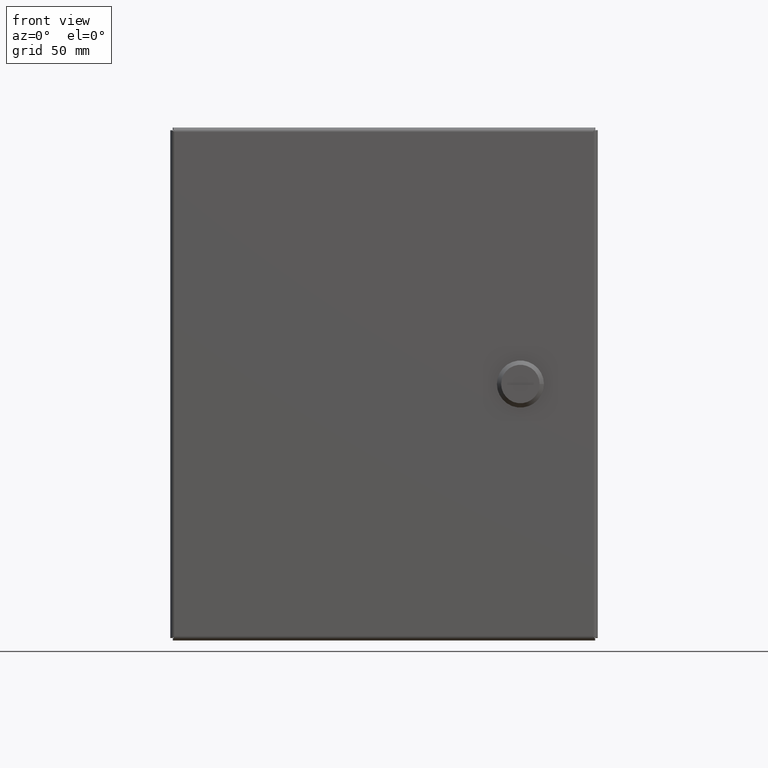
[diagram: clean part render]
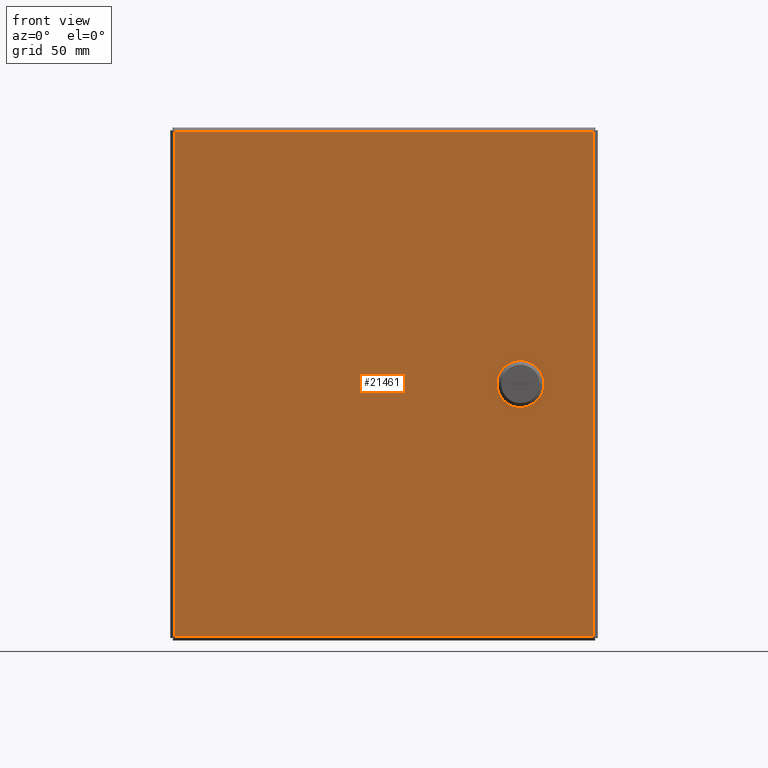
[diagram: same view with one face highlighted and labeled with its STEP entity id]
A machine part, front view. The second image highlights one B-rep face of the part: STEP entity #21461.
In plain terms, the highlighted planar face has unit normal (0, -1, 0).
Its self-contained STEP definition (entity closure, byte-faithful):
#275 = DIRECTION ( 'NONE',  ( 0.0000000000000000000, -0.0000000000000000000, -1.000000000000000000 ) ) ;
#700 = VECTOR ( 'NONE', #1208, 39.37007874015748143 ) ;
#775 = EDGE_CURVE ( 'NONE', #26971, #25436, #2151, .T. ) ;
#856 = EDGE_CURVE ( 'NONE', #25266, #16350, #24189, .T. ) ;
#1159 = ORIENTED_EDGE ( 'NONE', *, *, #7197, .T. ) ;
#1169 = VECTOR ( 'NONE', #20569, 39.37007874015748143 ) ;
#1208 = DIRECTION ( 'NONE',  ( -0.0000000000000000000, 0.0000000000000000000, 1.000000000000000000 ) ) ;
#1214 = ORIENTED_EDGE ( 'NONE', *, *, #9180, .T. ) ;
#1715 = LINE ( 'NONE', #19290, #17512 ) ;
#1928 = CARTESIAN_POINT ( 'NONE',  ( -4.896000000000005237, -6.821999999999999176, -5.899000000000003574 ) ) ;
#1990 = VECTOR ( 'NONE', #4721, 39.37007874015748143 ) ;
#2151 = LINE ( 'NONE', #9357, #1990 ) ;
#2502 = ORIENTED_EDGE ( 'NONE', *, *, #25469, .T. ) ;
#2756 = ORIENTED_EDGE ( 'NONE', *, *, #20912, .T. ) ;
#2850 = CARTESIAN_POINT ( 'NONE',  ( 2.795499999999944141, -6.821999999999999176, -0.2314966081312852808 ) ) ;
#2858 = ORIENTED_EDGE ( 'NONE', *, *, #23919, .T. ) ;
#3510 = CARTESIAN_POINT ( 'NONE',  ( 3.421996608131274265, -6.821999999999999176, 0.3950000000000398193 ) ) ;
#3790 = LINE ( 'NONE', #8404, #1169 ) ;
#4303 = VERTEX_POINT ( 'NONE', #7478 ) ;
#4503 = ORIENTED_EDGE ( 'NONE', *, *, #12072, .T. ) ;
#4648 = CARTESIAN_POINT ( 'NONE',  ( -4.896000000000005237, -6.821999999999999176, 5.897999999999997023 ) ) ;
#4721 = DIRECTION ( 'NONE',  ( -0.7071067811865520136, 0.0000000000000000000, 0.7071067811865430208 ) ) ;
#5160 = ORIENTED_EDGE ( 'NONE', *, *, #856, .T. ) ;
#5730 = VECTOR ( 'NONE', #20011, 39.37007874015748143 ) ;
#6004 = DIRECTION ( 'NONE',  ( -0.7071067811865510144, 0.0000000000000000000, -0.7071067811865440200 ) ) ;
#6099 = FACE_BOUND ( 'NONE', #8495, .T. ) ;
#6273 = CARTESIAN_POINT ( 'NONE',  ( 3.421996608131274265, -6.821999999999999176, -0.3960000000000510334 ) ) ;
#6490 = CARTESIAN_POINT ( 'NONE',  ( 2.795499999999944141, -6.821999999999999176, 0.2304966081312764814 ) ) ;
#7197 = EDGE_CURVE ( 'NONE', #12259, #16195, #10181, .T. ) ;
#7352 = ORIENTED_EDGE ( 'NONE', *, *, #27777, .T. ) ;
#7478 = CARTESIAN_POINT ( 'NONE',  ( 4.900999999999995360, -6.821999999999999176, 5.897999999999997023 ) ) ;
#8404 = CARTESIAN_POINT ( 'NONE',  ( -4.896000000000005237, -6.821999999999999176, -5.899000000000003574 ) ) ;
#8495 = EDGE_LOOP ( 'NONE', ( #7352, #2502, #2858, #1159, #4503, #13724, #18428, #9294 ) ) ;
#8753 = CARTESIAN_POINT ( 'NONE',  ( 3.586500000000042210, -6.821999999999999176, -0.2314966081312853641 ) ) ;
#8992 = CARTESIAN_POINT ( 'NONE',  ( 3.586500000000041766, -6.821999999999999176, -0.2314966081312854473 ) ) ;
#9096 = LINE ( 'NONE', #20034, #22745 ) ;
#9180 = EDGE_CURVE ( 'NONE', #16350, #21735, #3790, .T. ) ;
#9294 = ORIENTED_EDGE ( 'NONE', *, *, #775, .T. ) ;
#9357 = CARTESIAN_POINT ( 'NONE',  ( 2.795499999999944141, -6.821999999999999176, -0.2314966081312853641 ) ) ;
#9489 = DIRECTION ( 'NONE',  ( -1.182635544203179920E-15, 0.0000000000000000000, -1.000000000000000000 ) ) ;
#9894 = CARTESIAN_POINT ( 'NONE',  ( 2.960003391868710754, -6.821999999999999176, -0.3960000000000506448 ) ) ;
#9926 = VECTOR ( 'NONE', #28304, 39.37007874015748143 ) ;
#10181 = LINE ( 'NONE', #3510, #27763 ) ;
#10461 = DIRECTION ( 'NONE',  ( 0.0000000000000000000, -0.0000000000000000000, -1.000000000000000000 ) ) ;
#10816 = LINE ( 'NONE', #23469, #9926 ) ;
#11105 = CARTESIAN_POINT ( 'NONE',  ( -4.896000000000005237, -6.821999999999999176, -5.899000000000003574 ) ) ;
#11234 = CARTESIAN_POINT ( 'NONE',  ( 2.960003391868711198, -6.821999999999999176, 0.3950000000000438161 ) ) ;
#11369 = LINE ( 'NONE', #11234, #5730 ) ;
#11777 = LINE ( 'NONE', #26816, #25775 ) ;
#11997 = EDGE_CURVE ( 'NONE', #12854, #26971, #1715, .T. ) ;
#12072 = EDGE_CURVE ( 'NONE', #16195, #19596, #11777, .T. ) ;
#12259 = VERTEX_POINT ( 'NONE', #18228 ) ;
#12319 = PLANE ( 'NONE',  #17620 ) ;
#12603 = FACE_OUTER_BOUND ( 'NONE', #25650, .T. ) ;
#12854 = VERTEX_POINT ( 'NONE', #6273 ) ;
#13274 = VECTOR ( 'NONE', #17540, 39.37007874015748143 ) ;
#13710 = DIRECTION ( 'NONE',  ( 1.000000000000000000, 0.0000000000000000000, -2.660929974457159997E-15 ) ) ;
#13724 = ORIENTED_EDGE ( 'NONE', *, *, #27705, .T. ) ;
#16195 = VERTEX_POINT ( 'NONE', #18732 ) ;
#16350 = VERTEX_POINT ( 'NONE', #24175 ) ;
#17512 = VECTOR ( 'NONE', #20885, 39.37007874015748143 ) ;
#17540 = DIRECTION ( 'NONE',  ( 0.0000000000000000000, 0.0000000000000000000, 1.000000000000000000 ) ) ;
#17620 = AXIS2_PLACEMENT_3D ( 'NONE', #1928, #27643, #10461 ) ;
#17787 = ORIENTED_EDGE ( 'NONE', *, *, #24118, .T. ) ;
#18228 = CARTESIAN_POINT ( 'NONE',  ( 3.421996608131273376, -6.821999999999999176, 0.3950000000000429279 ) ) ;
#18300 = VECTOR ( 'NONE', #6004, 39.37007874015748143 ) ;
#18428 = ORIENTED_EDGE ( 'NONE', *, *, #11997, .T. ) ;
#18732 = CARTESIAN_POINT ( 'NONE',  ( 3.586500000000041766, -6.821999999999999176, 0.2304966081312765369 ) ) ;
#19290 = CARTESIAN_POINT ( 'NONE',  ( 2.960003391868711198, -6.821999999999999176, -0.3960000000000507003 ) ) ;
#19416 = LINE ( 'NONE', #19690, #13274 ) ;
#19596 = VERTEX_POINT ( 'NONE', #8992 ) ;
#19690 = CARTESIAN_POINT ( 'NONE',  ( 2.795499999999944141, -6.821999999999999176, 0.2304966081312765092 ) ) ;
#19780 = VERTEX_POINT ( 'NONE', #6490 ) ;
#20011 = DIRECTION ( 'NONE',  ( 0.7071067811865510144, 0.0000000000000000000, 0.7071067811865440200 ) ) ;
#20034 = CARTESIAN_POINT ( 'NONE',  ( 3.421996608131274265, -6.821999999999999176, 0.3950000000000438161 ) ) ;
#20569 = DIRECTION ( 'NONE',  ( 1.000000000000000000, 0.0000000000000000000, 0.0000000000000000000 ) ) ;
#20885 = DIRECTION ( 'NONE',  ( -1.000000000000000000, 0.0000000000000000000, 5.913177721015899600E-16 ) ) ;
#20912 = EDGE_CURVE ( 'NONE', #21735, #4303, #21083, .T. ) ;
#21083 = LINE ( 'NONE', #25114, #700 ) ;
#21461 = ADVANCED_FACE ( 'NONE', ( #12603, #6099 ), #12319, .T. ) ;
#21735 = VERTEX_POINT ( 'NONE', #27608 ) ;
#22224 = VECTOR ( 'NONE', #275, 39.37007874015748143 ) ;
#22745 = VECTOR ( 'NONE', #13710, 39.37007874015748143 ) ;
#23250 = DIRECTION ( 'NONE',  ( 0.7071067811865540120, 0.0000000000000000000, -0.7071067811865410224 ) ) ;
#23469 = CARTESIAN_POINT ( 'NONE',  ( -4.896000000000005237, -6.821999999999999176, 5.897999999999997023 ) ) ;
#23919 = EDGE_CURVE ( 'NONE', #24114, #12259, #9096, .T. ) ;
#24114 = VERTEX_POINT ( 'NONE', #28014 ) ;
#24118 = EDGE_CURVE ( 'NONE', #4303, #25266, #10816, .T. ) ;
#24175 = CARTESIAN_POINT ( 'NONE',  ( -4.896000000000005237, -6.821999999999999176, -5.899000000000003574 ) ) ;
#24189 = LINE ( 'NONE', #11105, #22224 ) ;
#25114 = CARTESIAN_POINT ( 'NONE',  ( 4.900999999999995360, -6.821999999999999176, -5.899000000000003574 ) ) ;
#25266 = VERTEX_POINT ( 'NONE', #4648 ) ;
#25436 = VERTEX_POINT ( 'NONE', #2850 ) ;
#25469 = EDGE_CURVE ( 'NONE', #19780, #24114, #11369, .T. ) ;
#25638 = LINE ( 'NONE', #8753, #18300 ) ;
#25650 = EDGE_LOOP ( 'NONE', ( #2756, #17787, #5160, #1214 ) ) ;
#25775 = VECTOR ( 'NONE', #9489, 39.37007874015748143 ) ;
#26816 = CARTESIAN_POINT ( 'NONE',  ( 3.586500000000042210, -6.821999999999999176, -0.2314966081312853641 ) ) ;
#26971 = VERTEX_POINT ( 'NONE', #9894 ) ;
#27608 = CARTESIAN_POINT ( 'NONE',  ( 4.900999999999996248, -6.821999999999999176, -5.899000000000003574 ) ) ;
#27643 = DIRECTION ( 'NONE',  ( 0.0000000000000000000, -1.000000000000000000, 0.0000000000000000000 ) ) ;
#27705 = EDGE_CURVE ( 'NONE', #19596, #12854, #25638, .T. ) ;
#27763 = VECTOR ( 'NONE', #23250, 39.37007874015748143 ) ;
#27777 = EDGE_CURVE ( 'NONE', #25436, #19780, #19416, .T. ) ;
#28014 = CARTESIAN_POINT ( 'NONE',  ( 2.960003391868710310, -6.821999999999999176, 0.3950000000000439826 ) ) ;
#28304 = DIRECTION ( 'NONE',  ( -1.000000000000000000, -0.0000000000000000000, -0.0000000000000000000 ) ) ;